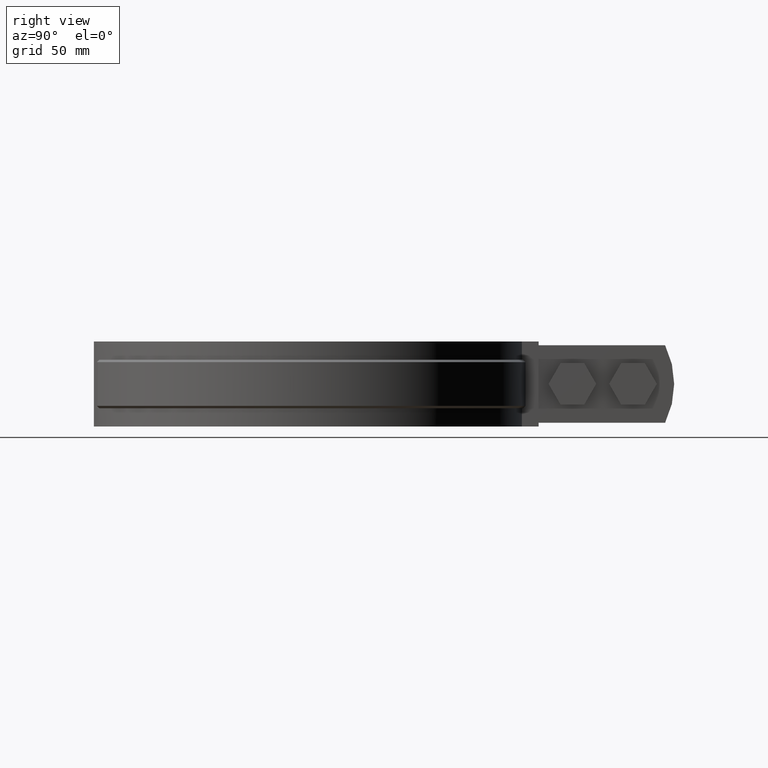
[diagram: clean part render]
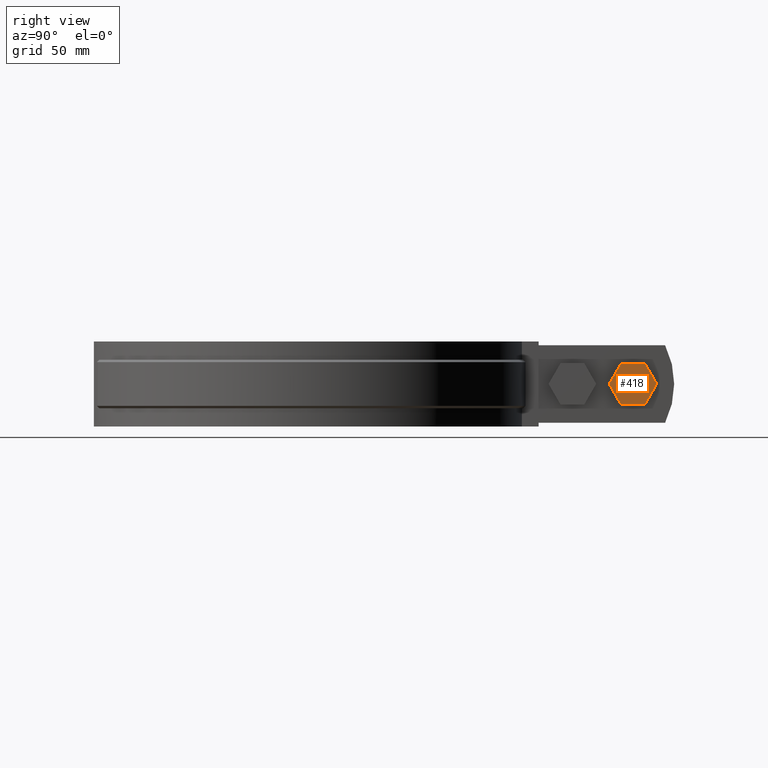
[diagram: same view with one face highlighted and labeled with its STEP entity id]
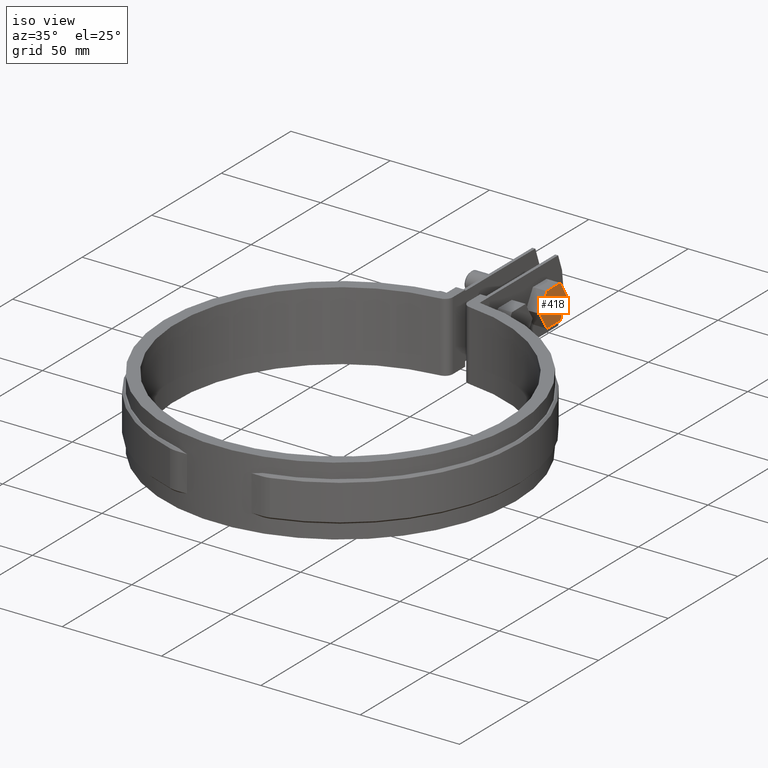
[diagram: same view with one face highlighted and labeled with its STEP entity id]
A machine part, right view. The second image highlights one B-rep face of the part: STEP entity #418.
A second angle (iso view) of the same face is appended — the face is thin or edge-on in the first view.
In plain terms, the highlighted planar face has unit normal (-1, 0, 0).
Its self-contained STEP definition (entity closure, byte-faithful):
#418 = ADVANCED_FACE( '', ( #694 ), #695, .F. );
#694 = FACE_OUTER_BOUND( '', #1772, .T. );
#695 = PLANE( '', #1773 );
#1772 = EDGE_LOOP( '', ( #4261, #4262, #4263, #4264, #4265, #4266 ) );
#1773 = AXIS2_PLACEMENT_3D( '', #4267, #4268, #4269 );
#4261 = ORIENTED_EDGE( '', *, *, #4909, .T. );
#4262 = ORIENTED_EDGE( '', *, *, #4911, .T. );
#4263 = ORIENTED_EDGE( '', *, *, #4905, .T. );
#4264 = ORIENTED_EDGE( '', *, *, #4916, .T. );
#4265 = ORIENTED_EDGE( '', *, *, #4914, .T. );
#4266 = ORIENTED_EDGE( '', *, *, #4917, .T. );
#4267 = CARTESIAN_POINT( '', ( 13.4999999999998, 119.280555134357, -24.4999999999998 ) );
#4268 = DIRECTION( '', ( -1.00000000000000, 6.22721247786546E-017, 0.000000000000000 ) );
#4269 = DIRECTION( '', ( 0.000000000000000, 0.000000000000000, 1.00000000000000 ) );
#4905 = EDGE_CURVE( '', #5518, #5516, #5519, .T. );
#4909 = EDGE_CURVE( '', #5525, #5523, #5526, .T. );
#4911 = EDGE_CURVE( '', #5523, #5518, #5528, .T. );
#4914 = EDGE_CURVE( '', #5533, #5531, #5534, .T. );
#4916 = EDGE_CURVE( '', #5516, #5533, #5536, .T. );
#4917 = EDGE_CURVE( '', #5531, #5525, #5537, .T. );
#5516 = VERTEX_POINT( '', #8342 );
#5518 = VERTEX_POINT( '', #8345 );
#5519 = LINE( '', #8346, #8347 );
#5523 = VERTEX_POINT( '', #8352 );
#5525 = VERTEX_POINT( '', #8355 );
#5526 = LINE( '', #8356, #8357 );
#5528 = LINE( '', #8360, #8361 );
#5531 = VERTEX_POINT( '', #8364 );
#5533 = VERTEX_POINT( '', #8367 );
#5534 = LINE( '', #8368, #8369 );
#5536 = LINE( '', #8372, #8373 );
#5537 = LINE( '', #8374, #8375 );
#8342 = CARTESIAN_POINT( '', ( 13.4999999999998, 138.910464286804, -7.50000000000013 ) );
#8345 = CARTESIAN_POINT( '', ( 13.4999999999998, 143.817941574915, -16.0000000000000 ) );
#8346 = CARTESIAN_POINT( '', ( 13.4999999999998, 143.817941574915, -16.0000000000000 ) );
#8347 = VECTOR( '', #9069, 1000.00000000000 );
#8352 = CARTESIAN_POINT( '', ( 13.4999999999998, 138.910464286804, -24.4999999999998 ) );
#8355 = CARTESIAN_POINT( '', ( 13.4999999999998, 129.095509710581, -24.4999999999998 ) );
#8356 = CARTESIAN_POINT( '', ( 13.4999999999998, 129.095509710581, -24.4999999999998 ) );
#8357 = VECTOR( '', #9075, 1000.00000000000 );
#8360 = CARTESIAN_POINT( '', ( 13.4999999999998, 138.910464286804, -24.4999999999998 ) );
#8361 = VECTOR( '', #9077, 1000.00000000000 );
#8364 = CARTESIAN_POINT( '', ( 13.4999999999998, 124.188032422469, -16.0000000000000 ) );
#8367 = CARTESIAN_POINT( '', ( 13.4999999999998, 129.095509710581, -7.50000000000013 ) );
#8368 = CARTESIAN_POINT( '', ( 13.4999999999998, 129.095509710581, -7.50000000000013 ) );
#8369 = VECTOR( '', #9082, 1000.00000000000 );
#8372 = CARTESIAN_POINT( '', ( 13.4999999999998, 138.910464286804, -7.50000000000013 ) );
#8373 = VECTOR( '', #9084, 1000.00000000000 );
#8374 = CARTESIAN_POINT( '', ( 13.4999999999998, 124.188032422469, -16.0000000000000 ) );
#8375 = VECTOR( '', #9085, 1000.00000000000 );
#9069 = DIRECTION( '', ( -3.11360623893265E-017, -0.499999999999988, 0.866025403784446 ) );
#9075 = DIRECTION( '', ( 6.22721247786546E-017, 1.00000000000000, -3.33066907387558E-016 ) );
#9077 = DIRECTION( '', ( 3.11360623893265E-017, 0.499999999999988, 0.866025403784446 ) );
#9082 = DIRECTION( '', ( -3.11360623893265E-017, -0.499999999999988, -0.866025403784446 ) );
#9084 = DIRECTION( '', ( -6.22721247786546E-017, -1.00000000000000, 1.91890799698930E-049 ) );
#9085 = DIRECTION( '', ( 3.11360623893265E-017, 0.499999999999987, -0.866025403784446 ) );